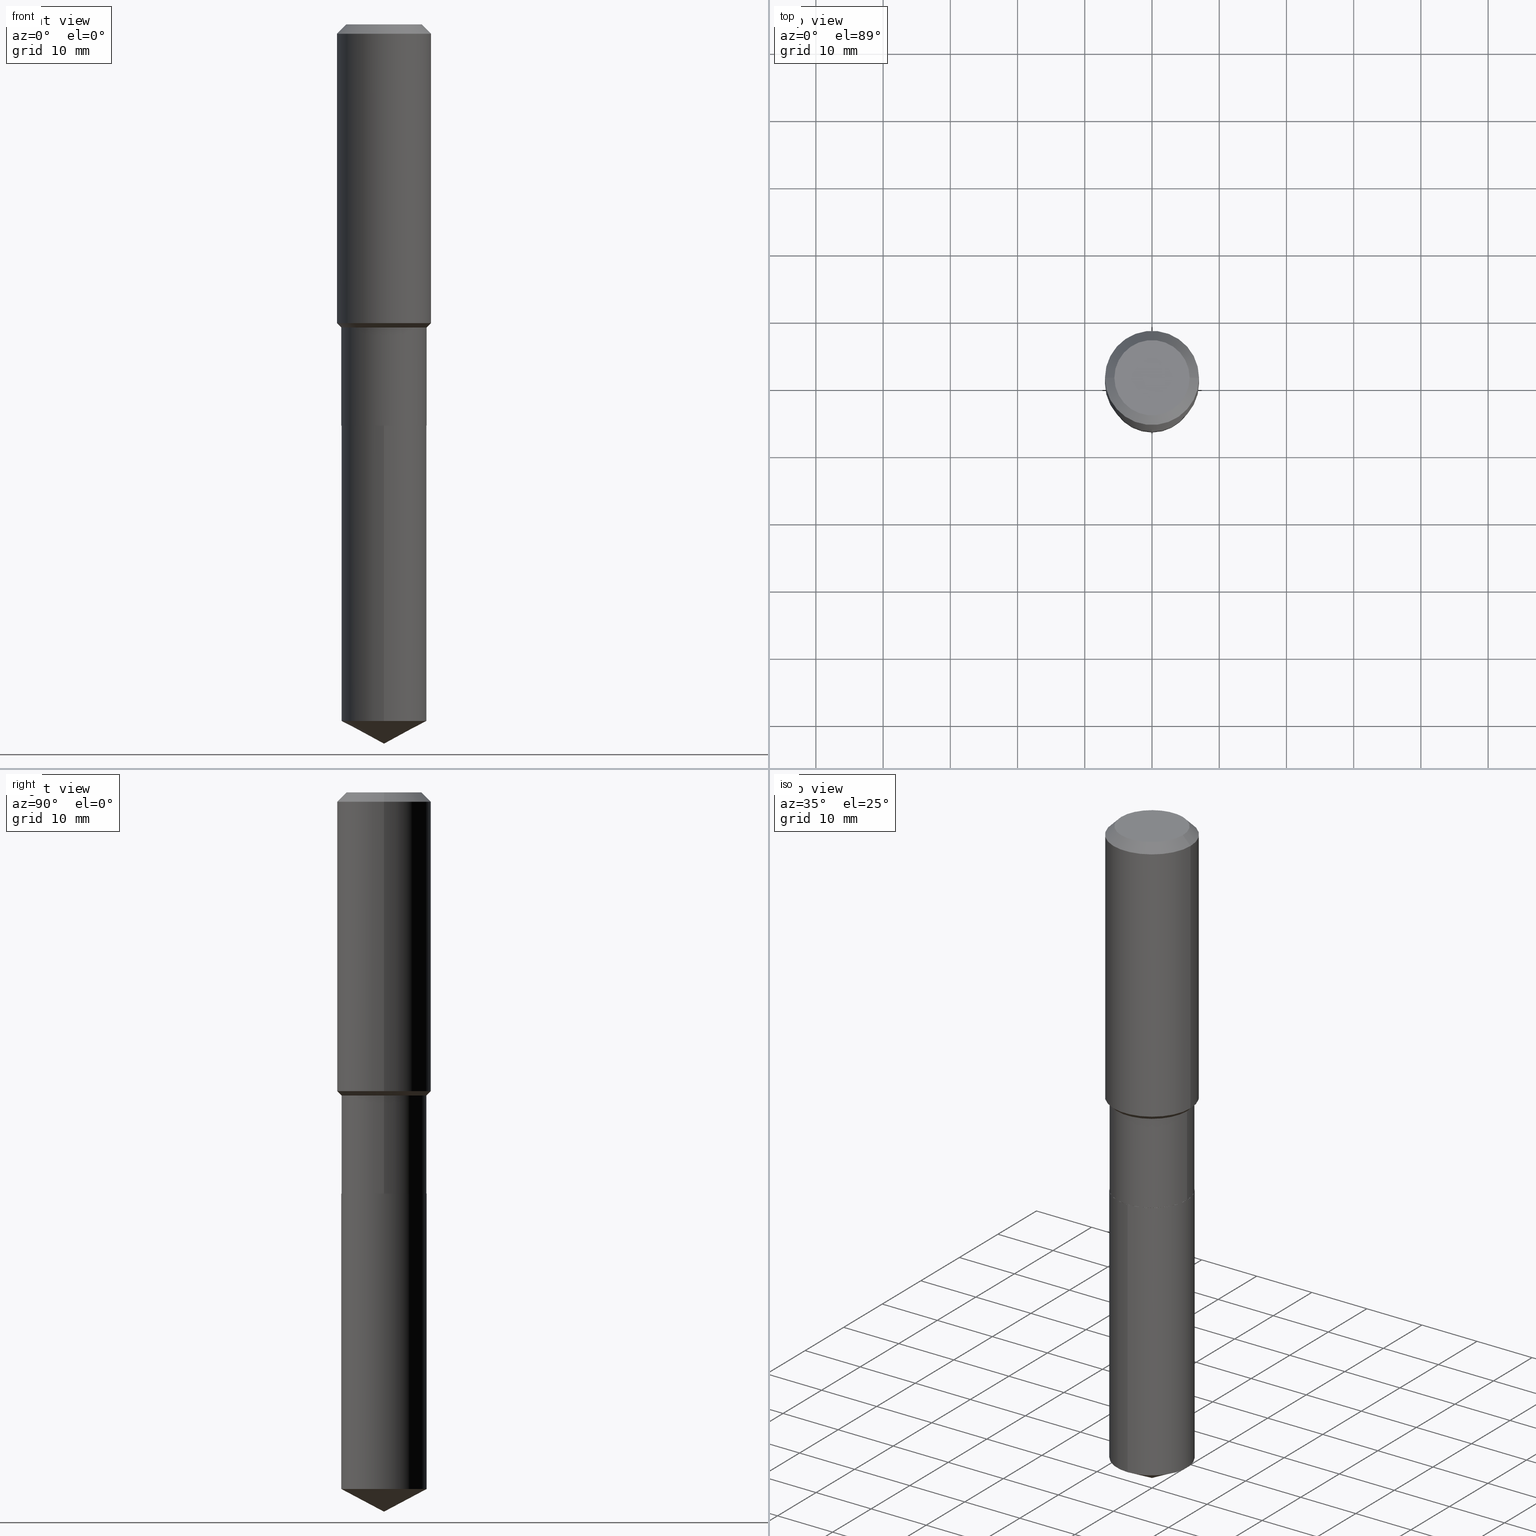
[diagram: canonical four-view strip — front | top / right | iso, engineering-drawing reading convention]
A machine part, canonical four-view strip (front | top / right | iso — engineering-drawing reading convention). The complete STEP part file that produces these views, byte-faithful:
ISO-10303-21;
HEADER;
FILE_DESCRIPTION (( 'STEP AP203' ),
    '1' );
FILE_NAME ('54628.STEP',
    '2024-04-24T15:16:02',
    ( '' ),
    ( '' ),
    'SwSTEP 2.0',
    'SolidWorks 2023',
    '' );
FILE_SCHEMA (( 'CONFIG_CONTROL_DESIGN' ));
ENDSEC;

DATA;
#1 = CYLINDRICAL_SURFACE ( 'NONE', #47, 0.2499999999999999722 ) ;
#2 = DIRECTION ( 'NONE',  ( 1.000000000000000000, -6.982962677686266711E-15, 0.000000000000000000 ) ) ;
#3 = PERSON_AND_ORGANIZATION ( #74, #14 ) ;
#4 = VERTEX_POINT ( 'NONE', #471 ) ;
#5 = CYLINDRICAL_SURFACE ( 'NONE', #313, 0.2500000000000000000 ) ;
#6 = AXIS2_PLACEMENT_3D ( 'NONE', #94, #62, #132 ) ;
#7 = DIRECTION ( 'NONE',  ( 1.000000000000000000, -6.982962677686266711E-15, 4.876132675269083677E-29 ) ) ;
#8 = VERTEX_POINT ( 'NONE', #128 ) ;
#9 = PLANE ( 'NONE',  #181 ) ;
#10 = LINE ( 'NONE', #78, #57 ) ;
#11 = ORIENTED_EDGE ( 'NONE', *, *, #251, .T. ) ;
#12 = DIRECTION ( 'NONE',  ( 1.000000000000000000, -6.982962677686266711E-15, 4.876132675269083677E-29 ) ) ;
#13 = ORIENTED_EDGE ( 'NONE', *, *, #142, .F. ) ;
#14 = ORGANIZATION ( 'UNSPECIFIED', 'UNSPECIFIED', '' ) ;
#15 = CARTESIAN_POINT ( 'NONE',  ( -1.745740669421508894E-15, -0.2500000000000082157, -2.350399999999999157 ) ) ;
#16 = CC_DESIGN_APPROVAL ( #19, ( #304 ) ) ;
#17 = DIRECTION ( 'NONE',  ( -2.445468806185136597E-29, 3.491481338843145583E-15, 1.000000000000000000 ) ) ;
#18 = LINE ( 'NONE', #169, #407 ) ;
#19 = APPROVAL ( #412, 'UNSPECIFIED' ) ;
#20 = FACE_OUTER_BOUND ( 'NONE', #291, .T. ) ;
#21 = LINE ( 'NONE', #15, #164 ) ;
#22 = CARTESIAN_POINT ( 'NONE',  ( 4.341685318501092485E-29, -6.198775968982121785E-15, -1.775400000000000311 ) ) ;
#23 = DIMENSIONAL_EXPONENTS ( 1.000000000000000000, 0.000000000000000000, 0.000000000000000000, 0.000000000000000000, 0.000000000000000000, 0.000000000000000000, 0.000000000000000000 ) ;
#24 = EDGE_CURVE ( 'NONE', #269, #456, #210, .T. ) ;
#25 = EDGE_CURVE ( 'NONE', #351, #110, #21, .T. ) ;
#26 = EDGE_LOOP ( 'NONE', ( #160, #420, #204, #342 ) ) ;
#27 = APPROVAL_STATUS ( 'not_yet_approved' ) ;
#28 = AXIS2_PLACEMENT_3D ( 'NONE', #353, #67, #326 ) ;
#29 = APPROVAL_ROLE ( '' ) ;
#30 = CIRCLE ( 'NONE', #200, 0.2500000000000000000 ) ;
#31 = PERSON_AND_ORGANIZATION ( #74, #14 ) ;
#32 = DIRECTION ( 'NONE',  ( 1.000000000000000000, -6.982962677686266711E-15, 0.000000000000000000 ) ) ;
#33 = ADVANCED_FACE ( 'NONE', ( #101 ), #475, .T. ) ;
#34 = ORIENTED_EDGE ( 'NONE', *, *, #243, .F. ) ;
#35 = AXIS2_PLACEMENT_3D ( 'NONE', #470, #131, #125 ) ;
#36 = AXIS2_PLACEMENT_3D ( 'NONE', #406, #273, #384 ) ;
#37 = ORIENTED_EDGE ( 'NONE', *, *, #427, .T. ) ;
#38 = CC_DESIGN_PERSON_AND_ORGANIZATION_ASSIGNMENT ( #140, #106, ( #433 ) ) ;
#39 = DIRECTION ( 'NONE',  ( -2.445468806185136597E-29, 3.491481338843145583E-15, 1.000000000000000000 ) ) ;
#40 = CARTESIAN_POINT ( 'NONE',  ( 5.747829882057545692E-29, -8.206377738816930564E-15, -2.350400000000000045 ) ) ;
#41 = DATE_AND_TIME ( #325, #346 ) ;
#42 = EDGE_LOOP ( 'NONE', ( #322, #81 ) ) ;
#43 = DIRECTION ( 'NONE',  ( -2.445468806185136597E-29, 3.491481338843145583E-15, 1.000000000000000000 ) ) ;
#44 = ORIENTED_EDGE ( 'NONE', *, *, #253, .F. ) ;
#45 = DIRECTION ( 'NONE',  ( -2.445566419007551929E-29, 3.491341551725669682E-15, 1.000000000000000000 ) ) ;
#46 = ADVANCED_FACE ( 'NONE', ( #20 ), #219, .T. ) ;
#47 = AXIS2_PLACEMENT_3D ( 'NONE', #450, #414, #150 ) ;
#48 = ORIENTED_EDGE ( 'NONE', *, *, #72, .T. ) ;
#49 = CARTESIAN_POINT ( 'NONE',  ( 0.2500000000000000000, -9.950372667569074950E-15, -2.349900000000000322 ) ) ;
#50 = CARTESIAN_POINT ( 'NONE',  ( 0.2499999999999999167, -7.944516638403687674E-15, -1.775400000000000311 ) ) ;
#51 = EDGE_CURVE ( 'NONE', #230, #458, #137, .T. ) ;
#52 = VERTEX_POINT ( 'NONE', #61 ) ;
#53 = DIRECTION ( 'NONE',  ( -2.445468806185136597E-29, 3.491481338843145583E-15, 1.000000000000000000 ) ) ;
#54 = DIRECTION ( 'NONE',  ( -2.445566419007551929E-29, 3.491341551725669287E-15, 1.000000000000000000 ) ) ;
#55 = EDGE_CURVE ( 'NONE', #316, #4, #435, .T. ) ;
#56 = CARTESIAN_POINT ( 'NONE',  ( 0.000000000000000000, 0.000000000000000000, 0.000000000000000000 ) ) ;
#57 = VECTOR ( 'NONE', #268, 39.37007874015748143 ) ;
#58 = CIRCLE ( 'NONE', #345, 0.2499999999999999167 ) ;
#59 = FACE_OUTER_BOUND ( 'NONE', #194, .T. ) ;
#60 = ADVANCED_FACE ( 'NONE', ( #278 ), #171, .T. ) ;
#61 = CARTESIAN_POINT ( 'NONE',  ( -0.2756000000000000116, -1.192666469297548903E-15, -0.05512000000000035621 ) ) ;
#62 = DIRECTION ( 'NONE',  ( -2.445468806185136597E-29, 3.491481338843145583E-15, 1.000000000000000000 ) ) ;
#63 = CONICAL_SURFACE ( 'NONE', #249, 0.2756000000000000116, 0.7853981633974452814 ) ;
#64 = CONICAL_SURFACE ( 'NONE', #431, 0.2499999999999999167, 0.7853981633974516097 ) ;
#65 = VERTEX_POINT ( 'NONE', #238 ) ;
#66 = CARTESIAN_POINT ( 'NONE',  ( 0.000000000000000000, 0.000000000000000000, 0.000000000000000000 ) ) ;
#67 = DIRECTION ( 'NONE',  ( -2.445468806185136597E-29, 3.491481338843145583E-15, 1.000000000000000000 ) ) ;
#68 = ORIENTED_EDGE ( 'NONE', *, *, #243, .T. ) ;
#69 = AXIS2_PLACEMENT_3D ( 'NONE', #96, #212, #281 ) ;
#70 = MECHANICAL_CONTEXT ( 'NONE', #254, 'mechanical' ) ;
#71 = AXIS2_PLACEMENT_3D ( 'NONE', #120, #418, #314 ) ;
#72 = EDGE_CURVE ( 'NONE', #458, #269, #358, .T. ) ;
#73 = ORIENTED_EDGE ( 'NONE', *, *, #172, .T. ) ;
#74 = PERSON ( 'UNSPECIFIED', 'UNSPECIFIED', 'UNSPECIFIED', ('UNSPECIFIED'), ('UNSPECIFIED'), ('UNSPECIFIED') ) ;
#75 = VECTOR ( 'NONE', #360, 39.37007874015748143 ) ;
#76 = CARTESIAN_POINT ( 'NONE',  ( 0.2756000000000001227, -1.924504513970336137E-15, 1.343874319409360548E-29 ) ) ;
#77 = VECTOR ( 'NONE', #144, 39.37007874015748143 ) ;
#78 = CARTESIAN_POINT ( 'NONE',  ( 1.030173423835560571E-28, -1.470828253208138700E-14, -4.212600000000000122 ) ) ;
#79 = PRODUCT_DEFINITION ( 'UNKNOWN', '', #476, #177 ) ;
#80 = APPROVAL_DATE_TIME ( #455, #366 ) ;
#81 = ORIENTED_EDGE ( 'NONE', *, *, #114, .T. ) ;
#82 = DIRECTION ( 'NONE',  ( -2.445566419007551929E-29, 3.491341551725669682E-15, 1.000000000000000000 ) ) ;
#83 = COORDINATED_UNIVERSAL_TIME_OFFSET ( 5, 0, .BEHIND. ) ;
#84 = EDGE_LOOP ( 'NONE', ( #266, #388, #375 ) ) ;
#85 = CARTESIAN_POINT ( 'NONE',  ( 0.000000000000000000, 0.000000000000000000, 0.000000000000000000 ) ) ;
#86 = ORIENTED_EDGE ( 'NONE', *, *, #371, .F. ) ;
#87 = ADVANCED_FACE ( 'NONE', ( #59 ), #63, .T. ) ;
#88 = LINE ( 'NONE', #380, #454 ) ;
#89 = AXIS2_PLACEMENT_3D ( 'NONE', #309, #415, #235 ) ;
#90 = DIRECTION ( 'NONE',  ( -2.445468806185136597E-29, 3.491481338843145583E-15, 1.000000000000000000 ) ) ;
#91 = EDGE_LOOP ( 'NONE', ( #473, #182, #122, #378 ) ) ;
#92 = LINE ( 'NONE', #234, #98 ) ;
#93 = CARTESIAN_POINT ( 'NONE',  ( -1.745740669421508894E-15, -0.2500000000000082157, -2.350399999999999157 ) ) ;
#94 = CARTESIAN_POINT ( 'NONE',  ( 5.747829882057544571E-29, -8.206377738816928987E-15, -2.350400000000000045 ) ) ;
#95 = EDGE_CURVE ( 'NONE', #439, #312, #18, .T. ) ;
#96 = CARTESIAN_POINT ( 'NONE',  ( 0.000000000000000000, 0.000000000000000000, 0.000000000000000000 ) ) ;
#97 = FACE_OUTER_BOUND ( 'NONE', #228, .T. ) ;
#98 = VECTOR ( 'NONE', #108, 39.37007874015748143 ) ;
#99 = ORIENTED_EDGE ( 'NONE', *, *, #376, .F. ) ;
#100 = CARTESIAN_POINT ( 'NONE',  ( 0.2494999999999999996, -9.948626926899652657E-15, -2.350400000000000045 ) ) ;
#101 = FACE_OUTER_BOUND ( 'NONE', #482, .T. ) ;
#102 = FACE_OUTER_BOUND ( 'NONE', #26, .T. ) ;
#103 = MANIFOLD_SOLID_BREP ( 'Body-Move/Copy2[1]', #368 ) ;
#104 = EDGE_CURVE ( 'NONE', #351, #461, #335, .T. ) ;
#105 = CC_DESIGN_DATE_AND_TIME_ASSIGNMENT ( #179, #479, ( #304 ) ) ;
#106 = PERSON_AND_ORGANIZATION_ROLE ( 'design_owner' ) ;
#107 = AXIS2_PLACEMENT_3D ( 'NONE', #197, #348, #7 ) ;
#108 = DIRECTION ( 'NONE',  ( -2.445468806185136877E-29, 3.491481338843145188E-15, 1.000000000000000000 ) ) ;
#109 = EDGE_CURVE ( 'NONE', #269, #8, #261, .T. ) ;
#110 = VERTEX_POINT ( 'NONE', #93 ) ;
#111 = CARTESIAN_POINT ( 'NONE',  ( -9.439721640706190018E-47, 1.347742071746724849E-32, 3.860086710912454339E-18 ) ) ;
#112 = LOCAL_TIME ( 11, 16, 2.000000000000000000, #374 ) ;
#113 = FACE_OUTER_BOUND ( 'NONE', #198, .T. ) ;
#114 = EDGE_CURVE ( 'NONE', #439, #257, #220, .T. ) ;
#115 = ORIENTED_EDGE ( 'NONE', *, *, #142, .T. ) ;
#116 = DIRECTION ( 'NONE',  ( -2.445468806185136877E-29, 3.491481338843145188E-15, 1.000000000000000000 ) ) ;
#117 = DIRECTION ( 'NONE',  ( -2.445468806185136597E-29, 3.491481338843145583E-15, 1.000000000000000000 ) ) ;
#118 = ORIENTED_EDGE ( 'NONE', *, *, #72, .F. ) ;
#119 = EDGE_CURVE ( 'NONE', #65, #351, #10, .T. ) ;
#120 = CARTESIAN_POINT ( 'NONE',  ( 4.341685318501092485E-29, -6.198775968982121785E-15, -1.775400000000000311 ) ) ;
#121 = LINE ( 'NONE', #50, #240 ) ;
#122 = ORIENTED_EDGE ( 'NONE', *, *, #339, .T. ) ;
#123 = CARTESIAN_POINT ( 'NONE',  ( -0.2756000000000002337, -4.151138266952898691E-15, -1.749800000000000244 ) ) ;
#124 = AXIS2_PLACEMENT_3D ( 'NONE', #201, #117, #2 ) ;
#125 = DIRECTION ( 'NONE',  ( -6.982962677686265922E-15, -1.000000000000000000, 4.370956789862821150E-15 ) ) ;
#126 = AXIS2_PLACEMENT_3D ( 'NONE', #395, #468, #429 ) ;
#127 = CC_DESIGN_SECURITY_CLASSIFICATION ( #304, ( #476 ) ) ;
#128 = CARTESIAN_POINT ( 'NONE',  ( -0.2500000000000000555, -5.425347144164564170E-15, -2.349900000000000322 ) ) ;
#129 = CC_DESIGN_PERSON_AND_ORGANIZATION_ASSIGNMENT ( #185, #436, ( #476 ) ) ;
#130 = CARTESIAN_POINT ( 'NONE',  ( 0.2494999999999999996, -9.948626926899652657E-15, -2.350400000000000045 ) ) ;
#131 = DIRECTION ( 'NONE',  ( -2.445566419007551929E-29, 3.491341551725669682E-15, 1.000000000000000000 ) ) ;
#132 = DIRECTION ( 'NONE',  ( 1.000000000000000000, -6.982962677686269077E-15, 0.000000000000000000 ) ) ;
#133 = EDGE_CURVE ( 'NONE', #458, #230, #327, .T. ) ;
#134 = APPLICATION_CONTEXT ( 'configuration controlled 3d designs of mechanical parts and assemblies' ) ;
#135 = DIRECTION ( 'NONE',  ( 1.000000000000000000, -6.982962677686269077E-15, 0.000000000000000000 ) ) ;
#136 = CALENDAR_DATE ( 2024, 24, 4 ) ;
#137 = CIRCLE ( 'NONE', #180, 0.2494999999999999996 ) ;
#138 = LOCAL_TIME ( 11, 16, 2.000000000000000000, #143 ) ;
#139 = ORIENTED_EDGE ( 'NONE', *, *, #51, .F. ) ;
#140 = PERSON_AND_ORGANIZATION ( #74, #14 ) ;
#141 = DIRECTION ( 'NONE',  ( -0.7071067811868130271, 7.493145998871311837E-15, 0.7071067811862817853 ) ) ;
#142 = EDGE_CURVE ( 'NONE', #110, #285, #153, .T. ) ;
#143 = COORDINATED_UNIVERSAL_TIME_OFFSET ( 5, 0, .BEHIND. ) ;
#144 = DIRECTION ( 'NONE',  ( -2.445566419007551929E-29, 3.491341551725669287E-15, 1.000000000000000000 ) ) ;
#145 = APPROVAL_ROLE ( '' ) ;
#146 = CONICAL_SURFACE ( 'NONE', #284, 0.2494999999999999996, 0.7853981633978239785 ) ;
#147 = ORIENTED_EDGE ( 'NONE', *, *, #95, .F. ) ;
#148 = CARTESIAN_POINT ( 'NONE',  ( 1.347942405969256063E-30, -1.924504513970354330E-16, -0.05512000000000035621 ) ) ;
#149 = ORIENTED_EDGE ( 'NONE', *, *, #306, .T. ) ;
#150 = DIRECTION ( 'NONE',  ( 1.000000000000000000, -6.982962677686266711E-15, 4.876176775795935793E-29 ) ) ;
#151 = PERSON_AND_ORGANIZATION_ROLE ( 'creator' ) ;
#152 = EDGE_LOOP ( 'NONE', ( #34, #320, #329, #202 ) ) ;
#153 = CIRCLE ( 'NONE', #451, 0.2500000000000000000 ) ;
#154 = FACE_OUTER_BOUND ( 'NONE', #237, .T. ) ;
#155 = AXIS2_PLACEMENT_3D ( 'NONE', #466, #276, #321 ) ;
#156 = APPROVAL_PERSON_ORGANIZATION ( #442, #19, #145 ) ;
#157 = ORIENTED_EDGE ( 'NONE', *, *, #289, .T. ) ;
#158 = CARTESIAN_POINT ( 'NONE',  ( 7.544910167511496046E-29, -5.632856486589080252E-15, -2.350400000000000045 ) ) ;
#159 = CARTESIAN_POINT ( 'NONE',  ( 5.747829882057544571E-29, -8.206377738816928987E-15, -2.350400000000000045 ) ) ;
#160 = ORIENTED_EDGE ( 'NONE', *, *, #109, .T. ) ;
#161 = CARTESIAN_POINT ( 'NONE',  ( -1.745740669421466492E-15, -0.2500000000000141553, -4.079672642084629430 ) ) ;
#162 = ORIENTED_EDGE ( 'NONE', *, *, #133, .T. ) ;
#163 =( NAMED_UNIT ( * ) SI_UNIT ( $, .STERADIAN. ) SOLID_ANGLE_UNIT ( ) );
#164 = VECTOR ( 'NONE', #54, 39.37007874015748143 ) ;
#165 =( GEOMETRIC_REPRESENTATION_CONTEXT ( 3 ) GLOBAL_UNCERTAINTY_ASSIGNED_CONTEXT ( ( #363 ) ) GLOBAL_UNIT_ASSIGNED_CONTEXT ( ( #239, #217, #163 ) ) REPRESENTATION_CONTEXT ( 'NONE', 'WORKASPACE' ) );
#166 = CARTESIAN_POINT ( 'NONE',  ( 4.279081317062752596E-29, -6.109394046707736858E-15, -1.749800000000000244 ) ) ;
#167 = ADVANCED_FACE ( 'NONE', ( #113 ), #460, .F. ) ;
#168 = CARTESIAN_POINT ( 'NONE',  ( 5.747829882057544571E-29, -8.206377738816928987E-15, -2.350400000000000045 ) ) ;
#169 = CARTESIAN_POINT ( 'NONE',  ( 0.2756000000000000116, -2.083203699582869812E-15, -0.05512000000000035621 ) ) ;
#170 = PLANE ( 'NONE',  #155 ) ;
#171 = CYLINDRICAL_SURFACE ( 'NONE', #69, 0.2756000000000001227 ) ;
#172 = EDGE_CURVE ( 'NONE', #456, #4, #121, .T. ) ;
#173 = AXIS2_PLACEMENT_3D ( 'NONE', #343, #43, #386 ) ;
#174 = DIRECTION ( 'NONE',  ( -2.445566419007551929E-29, 3.491341551725669682E-15, 1.000000000000000000 ) ) ;
#175 = DIRECTION ( 'NONE',  ( 1.000000000000000000, -6.982962677686266711E-15, 4.876176775795935793E-29 ) ) ;
#176 = PERSON_AND_ORGANIZATION ( #74, #14 ) ;
#177 = DESIGN_CONTEXT ( 'detailed design', #134, 'design' ) ;
#178 = PRODUCT_RELATED_PRODUCT_CATEGORY ( 'detail', '', ( #433 ) ) ;
#179 = DATE_AND_TIME ( #265, #315 ) ;
#180 = AXIS2_PLACEMENT_3D ( 'NONE', #432, #246, #135 ) ;
#181 = AXIS2_PLACEMENT_3D ( 'NONE', #158, #308, #459 ) ;
#182 = ORIENTED_EDGE ( 'NONE', *, *, #55, .T. ) ;
#183 = APPROVAL_ROLE ( '' ) ;
#184 = LINE ( 'NONE', #489, #362 ) ;
#185 = PERSON_AND_ORGANIZATION ( #74, #14 ) ;
#186 = CARTESIAN_POINT ( 'NONE',  ( -0.2499999999999999167, -5.425347144164564958E-15, -1.775400000000000311 ) ) ;
#187 = ORIENTED_EDGE ( 'NONE', *, *, #443, .T. ) ;
#188 = CIRCLE ( 'NONE', #464, 0.2756000000000000116 ) ;
#189 = DIRECTION ( 'NONE',  ( -2.445468806185136877E-29, 3.491481338843145188E-15, 1.000000000000000000 ) ) ;
#190 = ORIENTED_EDGE ( 'NONE', *, *, #104, .T. ) ;
#191 = EDGE_CURVE ( 'NONE', #52, #312, #361, .T. ) ;
#192 = CARTESIAN_POINT ( 'NONE',  ( 1.776356839400350256E-15, 0.2499999999999918121, -2.350400000000000933 ) ) ;
#193 = APPROVAL_DATE_TIME ( #483, #218 ) ;
#194 = EDGE_LOOP ( 'NONE', ( #402, #225, #157, #99 ) ) ;
#195 = EDGE_CURVE ( 'NONE', #8, #269, #419, .T. ) ;
#196 = DIRECTION ( 'NONE',  ( -0.7071067811865453523, 2.468850131082234184E-15, -0.7071067811865496822 ) ) ;
#197 = CARTESIAN_POINT ( 'NONE',  ( -9.439721640706190018E-47, 1.347742071746724849E-32, 3.860086710912454339E-18 ) ) ;
#198 = EDGE_LOOP ( 'NONE', ( #115, #11 ) ) ;
#199 = FACE_OUTER_BOUND ( 'NONE', #91, .T. ) ;
#200 = AXIS2_PLACEMENT_3D ( 'NONE', #377, #82, #267 ) ;
#201 = CARTESIAN_POINT ( 'NONE',  ( 5.746607147654452891E-29, -8.204631998147508272E-15, -2.349900000000000322 ) ) ;
#202 = ORIENTED_EDGE ( 'NONE', *, *, #251, .F. ) ;
#203 = CARTESIAN_POINT ( 'NONE',  ( 0.2756000000000000116, -2.116954965367370658E-15, -0.05512000000000035621 ) ) ;
#204 = ORIENTED_EDGE ( 'NONE', *, *, #443, .F. ) ;
#205 = CARTESIAN_POINT ( 'NONE',  ( 5.747829882057545692E-29, -8.206377738816930564E-15, -2.350400000000000045 ) ) ;
#206 = CARTESIAN_POINT ( 'NONE',  ( 0.2499999999999999722, -1.745740669421566480E-15, 1.219044193948983808E-29 ) ) ;
#207 = CC_DESIGN_DATE_AND_TIME_ASSIGNMENT ( #288, #400, ( #79 ) ) ;
#208 = FACE_OUTER_BOUND ( 'NONE', #42, .T. ) ;
#209 = LOCAL_TIME ( 11, 16, 2.000000000000000000, #292 ) ;
#210 = LINE ( 'NONE', #206, #75 ) ;
#211 = DIRECTION ( 'NONE',  ( -2.445468806185136597E-29, 3.491481338843145583E-15, 1.000000000000000000 ) ) ;
#212 = DIRECTION ( 'NONE',  ( -2.445468806185136597E-29, 3.491481338843145583E-15, 1.000000000000000000 ) ) ;
#213 = EDGE_CURVE ( 'NONE', #230, #8, #447, .T. ) ;
#214 = ORIENTED_EDGE ( 'NONE', *, *, #51, .T. ) ;
#215 = LENGTH_MEASURE_WITH_UNIT ( LENGTH_MEASURE( 0.02539999999999999897 ), #393 );
#216 = AXIS2_PLACEMENT_3D ( 'NONE', #85, #53, #270 ) ;
#217 =( NAMED_UNIT ( * ) PLANE_ANGLE_UNIT ( ) SI_UNIT ( $, .RADIAN. ) );
#218 = APPROVAL ( #370, 'UNSPECIFIED' ) ;
#219 = CONICAL_SURFACE ( 'NONE', #6, 0.2494999999999999996, 0.7853981633978239785 ) ;
#220 = CIRCLE ( 'NONE', #107, 0.2204800000000000093 ) ;
#221 = ORIENTED_EDGE ( 'NONE', *, *, #195, .F. ) ;
#222 = AXIS2_PLACEMENT_3D ( 'NONE', #319, #426, #244 ) ;
#223 = CYLINDRICAL_SURFACE ( 'NONE', #216, 0.2756000000000001227 ) ;
#224 = PERSON_AND_ORGANIZATION ( #74, #14 ) ;
#225 = ORIENTED_EDGE ( 'NONE', *, *, #95, .T. ) ;
#226 = EDGE_CURVE ( 'NONE', #8, #233, #256, .T. ) ;
#227 = DIRECTION ( 'NONE',  ( -2.445566419007551929E-29, 3.491341551725669682E-15, 1.000000000000000000 ) ) ;
#228 = EDGE_LOOP ( 'NONE', ( #187, #385, #86, #465 ) ) ;
#229 = FACE_OUTER_BOUND ( 'NONE', #152, .T. ) ;
#230 = VERTEX_POINT ( 'NONE', #441 ) ;
#231 = VECTOR ( 'NONE', #425, 39.37007874015748854 ) ;
#232 = DIRECTION ( 'NONE',  ( -6.982962677686265922E-15, -1.000000000000000000, 3.278217592397115862E-15 ) ) ;
#233 = VERTEX_POINT ( 'NONE', #186 ) ;
#234 = CARTESIAN_POINT ( 'NONE',  ( -0.2756000000000001227, 1.958255779754836984E-15, -1.355658510874252567E-29 ) ) ;
#235 = DIRECTION ( 'NONE',  ( 6.982962677686265922E-15, 1.000000000000000000, -3.491341551725669287E-15 ) ) ;
#236 = EDGE_CURVE ( 'NONE', #65, #461, #184, .T. ) ;
#237 = EDGE_LOOP ( 'NONE', ( #338, #139 ) ) ;
#238 = CARTESIAN_POINT ( 'NONE',  ( 1.030219309671121457E-28, -1.470762542079955743E-14, -4.212600000000000122 ) ) ;
#239 =( CONVERSION_BASED_UNIT ( 'INCH', #215 ) LENGTH_UNIT ( ) NAMED_UNIT ( #23 ) );
#240 = VECTOR ( 'NONE', #387, 39.37007874015748854 ) ;
#241 = VECTOR ( 'NONE', #116, 39.37007874015748143 ) ;
#242 = ORIENTED_EDGE ( 'NONE', *, *, #24, .T. ) ;
#243 = EDGE_CURVE ( 'NONE', #461, #285, #296, .T. ) ;
#244 = DIRECTION ( 'NONE',  ( -1.000000000000000000, 6.982962677686269077E-15, 0.000000000000000000 ) ) ;
#245 = PRODUCT_DEFINITION_SHAPE ( 'NONE', 'NONE',  #79 ) ;
#246 = DIRECTION ( 'NONE',  ( -2.445468806185136597E-29, 3.491481338843145583E-15, 1.000000000000000000 ) ) ;
#247 = CYLINDRICAL_SURFACE ( 'NONE', #336, 0.2499999999999999722 ) ;
#248 = CARTESIAN_POINT ( 'NONE',  ( 0.2499999999999999167, -7.944516638403687674E-15, -1.775400000000000311 ) ) ;
#249 = AXIS2_PLACEMENT_3D ( 'NONE', #428, #389, #357 ) ;
#250 = VECTOR ( 'NONE', #422, 39.37007874015748854 ) ;
#251 = EDGE_CURVE ( 'NONE', #285, #110, #303, .T. ) ;
#252 = APPLICATION_PROTOCOL_DEFINITION ( 'international standard', 'config_control_design', 1994, #134 ) ;
#253 = EDGE_CURVE ( 'NONE', #233, #316, #255, .T. ) ;
#254 = APPLICATION_CONTEXT ( 'configuration controlled 3d designs of mechanical parts and assemblies' ) ;
#255 = LINE ( 'NONE', #305, #250 ) ;
#256 = LINE ( 'NONE', #403, #369 ) ;
#257 = VERTEX_POINT ( 'NONE', #448 ) ;
#258 = FACE_OUTER_BOUND ( 'NONE', #397, .T. ) ;
#259 = ADVANCED_FACE ( 'NONE', ( #297 ), #1, .T. ) ;
#260 = APPLICATION_PROTOCOL_DEFINITION ( 'international standard', 'config_control_design', 1994, #254 ) ;
#261 = CIRCLE ( 'NONE', #124, 0.2500000000000000000 ) ;
#262 = EDGE_LOOP ( 'NONE', ( #162, #382, #405, #118 ) ) ;
#263 = CIRCLE ( 'NONE', #173, 0.2756000000000002337 ) ;
#264 = LINE ( 'NONE', #76, #241 ) ;
#265 = CALENDAR_DATE ( 2024, 24, 4 ) ;
#266 = ORIENTED_EDGE ( 'NONE', *, *, #236, .F. ) ;
#267 = DIRECTION ( 'NONE',  ( -6.982962677686265922E-15, -1.000000000000000000, 4.370956789862821150E-15 ) ) ;
#268 = DIRECTION ( 'NONE',  ( -6.165590087286828929E-15, -0.8829475928589255451, 0.4694715627858933038 ) ) ;
#269 = VERTEX_POINT ( 'NONE', #49 ) ;
#270 = DIRECTION ( 'NONE',  ( 1.000000000000000000, -6.982962677686267499E-15, 4.876176775795935793E-29 ) ) ;
#271 = ORIENTED_EDGE ( 'NONE', *, *, #226, .F. ) ;
#272 = VECTOR ( 'NONE', #141, 39.37007874015748854 ) ;
#273 = DIRECTION ( 'NONE',  ( -2.445566419007551929E-29, 3.491341551725669682E-15, 1.000000000000000000 ) ) ;
#274 = DIRECTION ( 'NONE',  ( -6.982962677686265922E-15, -1.000000000000000000, 3.278217592397115862E-15 ) ) ;
#275 = ORIENTED_EDGE ( 'NONE', *, *, #323, .F. ) ;
#276 = DIRECTION ( 'NONE',  ( 2.438088387897960049E-29, -3.491481338843145188E-15, -1.000000000000000000 ) ) ;
#277 = ADVANCED_FACE ( 'NONE', ( #347 ), #396, .T. ) ;
#278 = FACE_OUTER_BOUND ( 'NONE', #349, .T. ) ;
#279 = DIRECTION ( 'NONE',  ( 1.000000000000000000, -6.982962677686269077E-15, 0.000000000000000000 ) ) ;
#280 = CC_DESIGN_PERSON_AND_ORGANIZATION_ASSIGNMENT ( #3, #151, ( #79 ) ) ;
#281 = DIRECTION ( 'NONE',  ( 1.000000000000000000, -6.982962677686267499E-15, 4.876176775795935793E-29 ) ) ;
#282 = CARTESIAN_POINT ( 'NONE',  ( 1.776356839400349467E-15, 0.2499999999999856781, -4.079672642084632095 ) ) ;
#283 = AXIS2_PLACEMENT_3D ( 'NONE', #166, #287, #394 ) ;
#284 = AXIS2_PLACEMENT_3D ( 'NONE', #168, #317, #359 ) ;
#285 = VERTEX_POINT ( 'NONE', #192 ) ;
#286 = FACE_OUTER_BOUND ( 'NONE', #302, .T. ) ;
#287 = DIRECTION ( 'NONE',  ( -2.445468806185136597E-29, 3.491481338843145583E-15, 1.000000000000000000 ) ) ;
#288 = DATE_AND_TIME ( #136, #209 ) ;
#289 = EDGE_CURVE ( 'NONE', #312, #52, #188, .T. ) ;
#290 = AXIS2_PLACEMENT_3D ( 'NONE', #111, #350, #12 ) ;
#291 = EDGE_LOOP ( 'NONE', ( #490, #214, #48, #221 ) ) ;
#292 = COORDINATED_UNIVERSAL_TIME_OFFSET ( 5, 0, .BEHIND. ) ;
#293 = CARTESIAN_POINT ( 'NONE',  ( 5.747829882057545692E-29, -8.206377738816930564E-15, -2.350400000000000045 ) ) ;
#294 = ADVANCED_FACE ( 'NONE', ( #411 ), #311, .T. ) ;
#295 = SHAPE_DEFINITION_REPRESENTATION ( #245, #488 ) ;
#296 = LINE ( 'NONE', #480, #77 ) ;
#297 = FACE_OUTER_BOUND ( 'NONE', #467, .T. ) ;
#298 = ORIENTED_EDGE ( 'NONE', *, *, #191, .T. ) ;
#299 = DIRECTION ( 'NONE',  ( -6.982962677686265922E-15, -1.000000000000000000, 3.278217592397115862E-15 ) ) ;
#300 = COORDINATED_UNIVERSAL_TIME_OFFSET ( 5, 0, .BEHIND. ) ;
#301 = AXIS2_PLACEMENT_3D ( 'NONE', #486, #367, #32 ) ;
#302 = EDGE_LOOP ( 'NONE', ( #147, #275, #344, #298 ) ) ;
#303 = CIRCLE ( 'NONE', #487, 0.2500000000000000000 ) ;
#304 = SECURITY_CLASSIFICATION ( '', '', #399 ) ;
#305 = CARTESIAN_POINT ( 'NONE',  ( -0.2499999999999999167, -4.422419129581871321E-15, -1.775400000000000311 ) ) ;
#306 = EDGE_CURVE ( 'NONE', #316, #52, #92, .T. ) ;
#307 = ORIENTED_EDGE ( 'NONE', *, *, #25, .F. ) ;
#308 = DIRECTION ( 'NONE',  ( -2.438088387897960049E-29, 3.491481338843145188E-15, 1.000000000000000000 ) ) ;
#309 = CARTESIAN_POINT ( 'NONE',  ( 5.747829882057545692E-29, -8.206377738816930564E-15, -2.350400000000000045 ) ) ;
#310 = ORIENTED_EDGE ( 'NONE', *, *, #371, .T. ) ;
#311 = CYLINDRICAL_SURFACE ( 'NONE', #421, 0.2500000000000000000 ) ;
#312 = VERTEX_POINT ( 'NONE', #203 ) ;
#313 = AXIS2_PLACEMENT_3D ( 'NONE', #205, #45, #232 ) ;
#314 = DIRECTION ( 'NONE',  ( 1.000000000000000000, -6.982962677686269077E-15, 0.000000000000000000 ) ) ;
#315 = LOCAL_TIME ( 11, 16, 2.000000000000000000, #83 ) ;
#316 = VERTEX_POINT ( 'NONE', #123 ) ;
#317 = DIRECTION ( 'NONE',  ( -2.445468806185136597E-29, 3.491481338843145583E-15, 1.000000000000000000 ) ) ;
#318 = DIRECTION ( 'NONE',  ( 0.7071067811865453523, -7.319954787623248157E-15, -0.7071067811865496822 ) ) ;
#319 = CARTESIAN_POINT ( 'NONE',  ( 1.347942405969256063E-30, -1.924504513970354330E-16, -0.05512000000000035621 ) ) ;
#320 = ORIENTED_EDGE ( 'NONE', *, *, #364, .T. ) ;
#321 = DIRECTION ( 'NONE',  ( -1.000000000000000000, 6.982962677686265922E-15, -4.876176775795935793E-29 ) ) ;
#322 = ORIENTED_EDGE ( 'NONE', *, *, #323, .T. ) ;
#323 = EDGE_CURVE ( 'NONE', #257, #439, #437, .T. ) ;
#324 = PERSON_AND_ORGANIZATION_ROLE ( 'classification_officer' ) ;
#325 = CALENDAR_DATE ( 2024, 24, 4 ) ;
#326 = DIRECTION ( 'NONE',  ( 1.000000000000000000, -6.982962677686265922E-15, 0.000000000000000000 ) ) ;
#327 = CIRCLE ( 'NONE', #381, 0.2494999999999999996 ) ;
#328 = APPROVAL_PERSON_ORGANIZATION ( #224, #218, #183 ) ;
#329 = ORIENTED_EDGE ( 'NONE', *, *, #25, .T. ) ;
#330 = CALENDAR_DATE ( 2024, 24, 4 ) ;
#331 = DIRECTION ( 'NONE',  ( 6.273719981627760554E-15, 0.8829475928589289868, 0.4694715627858871976 ) ) ;
#332 = CC_DESIGN_PERSON_AND_ORGANIZATION_ASSIGNMENT ( #31, #398, ( #476 ) ) ;
#333 = DIRECTION ( 'NONE',  ( 1.000000000000000000, 0.000000000000000000, 0.000000000000000000 ) ) ;
#334 = DIRECTION ( 'NONE',  ( -2.445566419007551929E-29, 3.491341551725669682E-15, 1.000000000000000000 ) ) ;
#335 = CIRCLE ( 'NONE', #35, 0.2500000000000000000 ) ;
#336 = AXIS2_PLACEMENT_3D ( 'NONE', #56, #17, #175 ) ;
#337 = CONICAL_SURFACE ( 'NONE', #222, 0.2756000000000000116, 0.7853981633974452814 ) ;
#338 = ORIENTED_EDGE ( 'NONE', *, *, #133, .F. ) ;
#339 = EDGE_CURVE ( 'NONE', #4, #312, #264, .T. ) ;
#340 = DIRECTION ( 'NONE',  ( 1.000000000000000000, -6.982962677686269077E-15, 0.000000000000000000 ) ) ;
#341 = DIRECTION ( 'NONE',  ( 0.000000000000000000, 0.000000000000000000, 1.000000000000000000 ) ) ;
#342 = ORIENTED_EDGE ( 'NONE', *, *, #24, .F. ) ;
#343 = CARTESIAN_POINT ( 'NONE',  ( 4.279081317062752596E-29, -6.109394046707736858E-15, -1.749800000000000244 ) ) ;
#344 = ORIENTED_EDGE ( 'NONE', *, *, #376, .T. ) ;
#345 = AXIS2_PLACEMENT_3D ( 'NONE', #22, #211, #279 ) ;
#346 = LOCAL_TIME ( 11, 16, 2.000000000000000000, #300 ) ;
#347 = FACE_OUTER_BOUND ( 'NONE', #84, .T. ) ;
#348 = DIRECTION ( 'NONE',  ( -2.445468806185136597E-29, 3.491481338843145583E-15, 1.000000000000000000 ) ) ;
#349 = EDGE_LOOP ( 'NONE', ( #310, #149, #372, #410 ) ) ;
#350 = DIRECTION ( 'NONE',  ( -2.445468806185136597E-29, 3.491481338843145583E-15, 1.000000000000000000 ) ) ;
#351 = VERTEX_POINT ( 'NONE', #161 ) ;
#352 = DIRECTION ( 'NONE',  ( 1.000000000000000000, -6.982962677686265922E-15, 0.000000000000000000 ) ) ;
#353 = CARTESIAN_POINT ( 'NONE',  ( 1.347942405969256063E-30, -1.924504513970354330E-16, -0.05512000000000035621 ) ) ;
#354 = CARTESIAN_POINT ( 'NONE',  ( -8.598017881307887797E-28, 1.227464378237827410E-13, 35.15747874015747954 ) ) ;
#355 = CC_DESIGN_PERSON_AND_ORGANIZATION_ASSIGNMENT ( #176, #324, ( #304 ) ) ;
#356 = APPROVAL_PERSON_ORGANIZATION ( #365, #366, #29 ) ;
#357 = DIRECTION ( 'NONE',  ( -1.000000000000000000, 6.982962677686269077E-15, 0.000000000000000000 ) ) ;
#358 = LINE ( 'NONE', #130, #231 ) ;
#359 = DIRECTION ( 'NONE',  ( 1.000000000000000000, -6.982962677686269077E-15, 0.000000000000000000 ) ) ;
#360 = DIRECTION ( 'NONE',  ( -2.445468806185136877E-29, 3.491481338843145188E-15, 1.000000000000000000 ) ) ;
#361 = CIRCLE ( 'NONE', #28, 0.2756000000000000116 ) ;
#362 = VECTOR ( 'NONE', #331, 39.37007874015747433 ) ;
#363 = UNCERTAINTY_MEASURE_WITH_UNIT (LENGTH_MEASURE( 1.000000000000000082E-05 ), #239, 'distance_accuracy_value', 'NONE');
#364 = EDGE_CURVE ( 'NONE', #461, #351, #30, .T. ) ;
#365 = PERSON_AND_ORGANIZATION ( #74, #14 ) ;
#366 = APPROVAL ( #27, 'UNSPECIFIED' ) ;
#367 = DIRECTION ( 'NONE',  ( -2.445468806185136597E-29, 3.491481338843145583E-15, 1.000000000000000000 ) ) ;
#368 = CLOSED_SHELL ( 'NONE', ( #294, #33, #277, #392, #167 ) ) ;
#369 = VECTOR ( 'NONE', #189, 39.37007874015748143 ) ;
#370 = APPROVAL_STATUS ( 'not_yet_approved' ) ;
#371 = EDGE_CURVE ( 'NONE', #4, #316, #263, .T. ) ;
#372 = ORIENTED_EDGE ( 'NONE', *, *, #289, .F. ) ;
#373 = CARTESIAN_POINT ( 'NONE',  ( 4.341685318501092485E-29, -6.198775968982121785E-15, -1.775400000000000311 ) ) ;
#374 = COORDINATED_UNIVERSAL_TIME_OFFSET ( 5, 0, .BEHIND. ) ;
#375 = ORIENTED_EDGE ( 'NONE', *, *, #364, .F. ) ;
#376 = EDGE_CURVE ( 'NONE', #257, #52, #88, .T. ) ;
#377 = CARTESIAN_POINT ( 'NONE',  ( 9.976880984848183371E-29, -1.424385916838943519E-14, -4.079672642084631207 ) ) ;
#378 = ORIENTED_EDGE ( 'NONE', *, *, #191, .F. ) ;
#379 = ADVANCED_FACE ( 'NONE', ( #199 ), #223, .T. ) ;
#380 = CARTESIAN_POINT ( 'NONE',  ( -0.2756000000000000116, 1.732054062573300039E-15, -0.05512000000000035621 ) ) ;
#381 = AXIS2_PLACEMENT_3D ( 'NONE', #159, #90, #424 ) ;
#382 = ORIENTED_EDGE ( 'NONE', *, *, #213, .T. ) ;
#383 = CIRCLE ( 'NONE', #71, 0.2499999999999999167 ) ;
#384 = DIRECTION ( 'NONE',  ( -6.982962677686266711E-15, -1.000000000000000000, 3.541896320645574279E-15 ) ) ;
#385 = ORIENTED_EDGE ( 'NONE', *, *, #253, .T. ) ;
#386 = DIRECTION ( 'NONE',  ( 1.000000000000000000, -6.982962677686267499E-15, 0.000000000000000000 ) ) ;
#387 = DIRECTION ( 'NONE',  ( 0.7071067811865497932, -2.468850131082280332E-15, 0.7071067811865451302 ) ) ;
#388 = ORIENTED_EDGE ( 'NONE', *, *, #119, .T. ) ;
#389 = DIRECTION ( 'NONE',  ( 2.445468806185136597E-29, -3.491481338843145583E-15, -1.000000000000000000 ) ) ;
#390 = CC_DESIGN_APPROVAL ( #218, ( #476 ) ) ;
#391 = DIRECTION ( 'NONE',  ( -6.982962677686266711E-15, -1.000000000000000000, 3.541896320645574279E-15 ) ) ;
#392 = ADVANCED_FACE ( 'NONE', ( #229 ), #5, .T. ) ;
#393 =( LENGTH_UNIT ( ) NAMED_UNIT ( * ) SI_UNIT ( $, .METRE. ) );
#394 = DIRECTION ( 'NONE',  ( 1.000000000000000000, -6.982962677686267499E-15, 0.000000000000000000 ) ) ;
#395 = CARTESIAN_POINT ( 'NONE',  ( 4.341685318501092485E-29, -6.198775968982121785E-15, -1.775400000000000311 ) ) ;
#396 = CONICAL_SURFACE ( 'NONE', #36, 74.04434902938325536, 1.082104136236484937 ) ;
#397 = EDGE_LOOP ( 'NONE', ( #44, #37, #73, #416 ) ) ;
#398 = PERSON_AND_ORGANIZATION_ROLE ( 'creator' ) ;
#399 = SECURITY_CLASSIFICATION_LEVEL ( 'unclassified' ) ;
#400 = DATE_TIME_ROLE ( 'creation_date' ) ;
#401 = AXIS2_PLACEMENT_3D ( 'NONE', #66, #341, #333 ) ;
#402 = ORIENTED_EDGE ( 'NONE', *, *, #114, .F. ) ;
#403 = CARTESIAN_POINT ( 'NONE',  ( -0.2499999999999999722, 1.776356839400250267E-15, -1.229733772563726305E-29 ) ) ;
#404 = ADVANCED_FACE ( 'NONE', ( #258 ), #64, .T. ) ;
#405 = ORIENTED_EDGE ( 'NONE', *, *, #109, .F. ) ;
#406 = CARTESIAN_POINT ( 'NONE',  ( -8.598017881307887797E-28, 1.227464378237827410E-13, 35.15747874015747954 ) ) ;
#407 = VECTOR ( 'NONE', #318, 39.37007874015748143 ) ;
#408 = CC_DESIGN_APPROVAL ( #366, ( #79 ) ) ;
#409 = CALENDAR_DATE ( 2024, 24, 4 ) ;
#410 = ORIENTED_EDGE ( 'NONE', *, *, #339, .F. ) ;
#411 = FACE_OUTER_BOUND ( 'NONE', #485, .T. ) ;
#412 = APPROVAL_STATUS ( 'not_yet_approved' ) ;
#413 = ORIENTED_EDGE ( 'NONE', *, *, #236, .T. ) ;
#414 = DIRECTION ( 'NONE',  ( -2.445468806185136597E-29, 3.491481338843145583E-15, 1.000000000000000000 ) ) ;
#415 = DIRECTION ( 'NONE',  ( 2.445566419007552210E-29, -3.491341551725669287E-15, -1.000000000000000000 ) ) ;
#416 = ORIENTED_EDGE ( 'NONE', *, *, #55, .F. ) ;
#417 = MANIFOLD_SOLID_BREP ( 'Body-Move/Copy2[2]', #445 ) ;
#418 = DIRECTION ( 'NONE',  ( -2.445468806185136597E-29, 3.491481338843145583E-15, 1.000000000000000000 ) ) ;
#419 = CIRCLE ( 'NONE', #301, 0.2500000000000000000 ) ;
#420 = ORIENTED_EDGE ( 'NONE', *, *, #226, .T. ) ;
#421 = AXIS2_PLACEMENT_3D ( 'NONE', #457, #227, #299 ) ;
#422 = DIRECTION ( 'NONE',  ( -0.7071067811865497932, 7.493145998870362049E-15, 0.7071067811865451302 ) ) ;
#423 = ADVANCED_FACE ( 'NONE', ( #154 ), #9, .F. ) ;
#424 = DIRECTION ( 'NONE',  ( 1.000000000000000000, -6.982962677686269077E-15, 0.000000000000000000 ) ) ;
#425 = DIRECTION ( 'NONE',  ( 0.7071067811868130271, -2.468850131085038979E-15, 0.7071067811862817853 ) ) ;
#426 = DIRECTION ( 'NONE',  ( 2.445468806185136597E-29, -3.491481338843145583E-15, -1.000000000000000000 ) ) ;
#427 = EDGE_CURVE ( 'NONE', #233, #456, #383, .T. ) ;
#428 = CARTESIAN_POINT ( 'NONE',  ( 1.347942405969256063E-30, -1.924504513970354330E-16, -0.05512000000000035621 ) ) ;
#429 = DIRECTION ( 'NONE',  ( 1.000000000000000000, -6.982962677686269077E-15, 0.000000000000000000 ) ) ;
#430 = ORIENTED_EDGE ( 'NONE', *, *, #195, .T. ) ;
#431 = AXIS2_PLACEMENT_3D ( 'NONE', #373, #39, #340 ) ;
#432 = CARTESIAN_POINT ( 'NONE',  ( 5.747829882057544571E-29, -8.206377738816928987E-15, -2.350400000000000045 ) ) ;
#433 = PRODUCT ( '54628', '54628', '', ( #70 ) ) ;
#434 = FACE_OUTER_BOUND ( 'NONE', #262, .T. ) ;
#435 = CIRCLE ( 'NONE', #283, 0.2756000000000002337 ) ;
#436 = PERSON_AND_ORGANIZATION_ROLE ( 'design_supplier' ) ;
#437 = CIRCLE ( 'NONE', #290, 0.2204800000000000093 ) ;
#438 = ADVANCED_FACE ( 'NONE', ( #208 ), #170, .F. ) ;
#439 = VERTEX_POINT ( 'NONE', #472 ) ;
#440 = APPROVAL_DATE_TIME ( #41, #19 ) ;
#441 = CARTESIAN_POINT ( 'NONE',  ( -0.2494999999999999996, -6.430924385921369008E-15, -2.350400000000000045 ) ) ;
#442 = PERSON_AND_ORGANIZATION ( #74, #14 ) ;
#443 = EDGE_CURVE ( 'NONE', #456, #233, #58, .T. ) ;
#444 = DIRECTION ( 'NONE',  ( -6.982962677686265922E-15, -1.000000000000000000, 3.278217592397115862E-15 ) ) ;
#445 = CLOSED_SHELL ( 'NONE', ( #453, #87, #60, #484, #481, #259, #404, #379, #469, #438, #423, #46 ) ) ;
#446 = CONICAL_SURFACE ( 'NONE', #126, 0.2499999999999999167, 0.7853981633974516097 ) ;
#447 = LINE ( 'NONE', #477, #272 ) ;
#448 = CARTESIAN_POINT ( 'NONE',  ( -0.2204800000000000093, 1.635828836874783961E-15, 3.860086710901350968E-18 ) ) ;
#449 = ORIENTED_EDGE ( 'NONE', *, *, #119, .F. ) ;
#450 = CARTESIAN_POINT ( 'NONE',  ( 0.000000000000000000, 0.000000000000000000, 0.000000000000000000 ) ) ;
#451 = AXIS2_PLACEMENT_3D ( 'NONE', #40, #452, #274 ) ;
#452 = DIRECTION ( 'NONE',  ( -2.445566419007551929E-29, 3.491341551725669682E-15, 1.000000000000000000 ) ) ;
#453 = ADVANCED_FACE ( 'NONE', ( #434 ), #146, .T. ) ;
#454 = VECTOR ( 'NONE', #196, 39.37007874015748143 ) ;
#455 = DATE_AND_TIME ( #409, #138 ) ;
#456 = VERTEX_POINT ( 'NONE', #248 ) ;
#457 = CARTESIAN_POINT ( 'NONE',  ( 5.747829882057545692E-29, -8.206377738816930564E-15, -2.350400000000000045 ) ) ;
#458 = VERTEX_POINT ( 'NONE', #100 ) ;
#459 = DIRECTION ( 'NONE',  ( 1.000000000000000000, -6.982962677686265922E-15, 4.876176775795935793E-29 ) ) ;
#460 = PLANE ( 'NONE',  #89 ) ;
#461 = VERTEX_POINT ( 'NONE', #282 ) ;
#462 = DIRECTION ( 'NONE',  ( -2.445468806185136597E-29, 3.491481338843145583E-15, 1.000000000000000000 ) ) ;
#463 = AXIS2_PLACEMENT_3D ( 'NONE', #354, #174, #391 ) ;
#464 = AXIS2_PLACEMENT_3D ( 'NONE', #148, #462, #352 ) ;
#465 = ORIENTED_EDGE ( 'NONE', *, *, #172, .F. ) ;
#466 = CARTESIAN_POINT ( 'NONE',  ( -4.719860820353095009E-47, 6.738710358733624243E-33, 1.930043355456227170E-18 ) ) ;
#467 = EDGE_LOOP ( 'NONE', ( #271, #430, #242, #474 ) ) ;
#468 = DIRECTION ( 'NONE',  ( -2.445468806185136597E-29, 3.491481338843145583E-15, 1.000000000000000000 ) ) ;
#469 = ADVANCED_FACE ( 'NONE', ( #286 ), #337, .T. ) ;
#470 = CARTESIAN_POINT ( 'NONE',  ( 9.976880984848183371E-29, -1.424385916838943519E-14, -4.079672642084631207 ) ) ;
#471 = CARTESIAN_POINT ( 'NONE',  ( 0.2756000000000002337, -8.033898560678073390E-15, -1.749800000000000244 ) ) ;
#472 = CARTESIAN_POINT ( 'NONE',  ( 0.2204800000000000093, -1.797903149065768707E-15, 3.860086710924123164E-18 ) ) ;
#473 = ORIENTED_EDGE ( 'NONE', *, *, #306, .F. ) ;
#474 = ORIENTED_EDGE ( 'NONE', *, *, #427, .F. ) ;
#475 = CONICAL_SURFACE ( 'NONE', #463, 74.04434902938325536, 1.082104136236484937 ) ;
#476 = PRODUCT_DEFINITION_FORMATION_WITH_SPECIFIED_SOURCE ( 'ANY', '', #433, .NOT_KNOWN. ) ;
#477 = CARTESIAN_POINT ( 'NONE',  ( -0.2494999999999999996, -6.433573613095479421E-15, -2.350400000000000045 ) ) ;
#478 = ORIENTED_EDGE ( 'NONE', *, *, #104, .F. ) ;
#479 = DATE_TIME_ROLE ( 'classification_date' ) ;
#480 = CARTESIAN_POINT ( 'NONE',  ( 1.776356839400307657E-15, 0.2499999999999918121, -2.350400000000000933 ) ) ;
#481 = ADVANCED_FACE ( 'NONE', ( #102 ), #247, .T. ) ;
#482 = EDGE_LOOP ( 'NONE', ( #449, #413, #478 ) ) ;
#483 = DATE_AND_TIME ( #330, #112 ) ;
#484 = ADVANCED_FACE ( 'NONE', ( #97 ), #446, .T. ) ;
#485 = EDGE_LOOP ( 'NONE', ( #190, #68, #13, #307 ) ) ;
#486 = CARTESIAN_POINT ( 'NONE',  ( 5.746607147654452891E-29, -8.204631998147508272E-15, -2.349900000000000322 ) ) ;
#487 = AXIS2_PLACEMENT_3D ( 'NONE', #293, #334, #444 ) ;
#488 = ADVANCED_BREP_SHAPE_REPRESENTATION ( '54628', ( #103, #417, #401 ), #165 ) ;
#489 = CARTESIAN_POINT ( 'NONE',  ( 1.030219712035735515E-28, -1.470762542079955743E-14, -4.212600000000000122 ) ) ;
#490 = ORIENTED_EDGE ( 'NONE', *, *, #213, .F. ) ;
ENDSEC;
END-ISO-10303-21;
